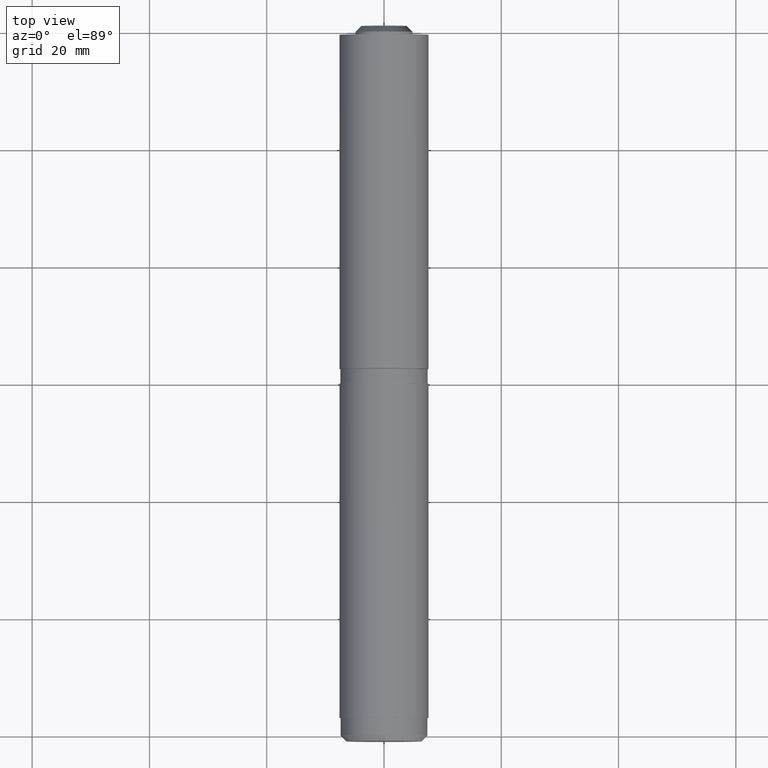
[diagram: clean part render]
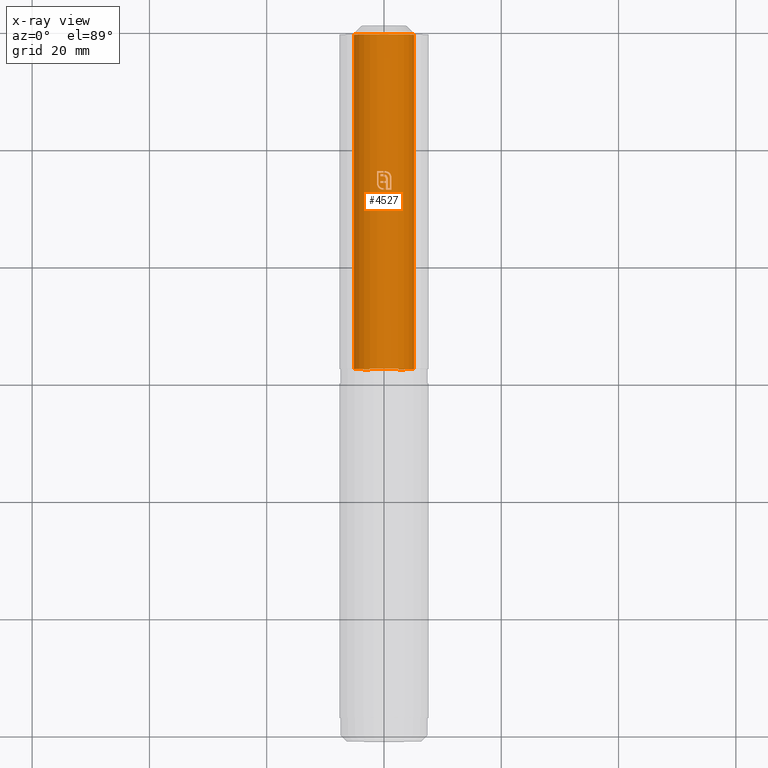
[diagram: x-ray — body ghosted, one internal face saturated and labeled with its STEP entity id]
A machine part, top view, then the same camera in x-ray: the body is ghosted and one INTERNAL B-rep face — a face not visible from any outside direction — is saturated and labeled: STEP entity #4527.
In plain terms, the highlighted cylindrical surface (edge-blend (fillet) strip) has radius 5.15 mm, axis along (-0, -1, -0).
Its self-contained STEP definition (entity closure, byte-faithful):
#54 = CARTESIAN_POINT ( 'NONE',  ( -0.9514638420062492274, 3.012266541773817696, 5.061345529765198137 ) ) ;
#95 = CARTESIAN_POINT ( 'NONE',  ( 0.2656416863490823066, 4.042744835306970153, 5.143174345169195583 ) ) ;
#100 = CARTESIAN_POINT ( 'NONE',  ( -0.9480115899238699129, 2.958224612087872796, 5.062003899162167642 ) ) ;
#117 = CARTESIAN_POINT ( 'NONE',  ( 1.235263937924517386, 4.278708222149789187, 4.999667901836229333 ) ) ;
#119 = EDGE_CURVE ( 'NONE', #3779, #10561, #13998, .T. ) ;
#126 = ORIENTED_EDGE ( 'NONE', *, *, #5623, .F. ) ;
#129 = CARTESIAN_POINT ( 'NONE',  ( 1.001326546113190608, 4.188117895584103856, 5.051727657652583581 ) ) ;
#148 = ORIENTED_EDGE ( 'NONE', *, *, #5060, .F. ) ;
#178 = CARTESIAN_POINT ( 'NONE',  ( 0.7634426423736651035, 4.656960180102788449, 5.093098794624497216 ) ) ;
#212 = CARTESIAN_POINT ( 'NONE',  ( 0.3116961057687814840, 3.907502314145853806, 5.140561942636786341 ) ) ;
#297 = LINE ( 'NONE', #10263, #10978 ) ;
#401 = VERTEX_POINT ( 'NONE', #2156 ) ;
#407 = ORIENTED_EDGE ( 'NONE', *, *, #10442, .F. ) ;
#425 = CARTESIAN_POINT ( 'NONE',  ( -1.198680113493026278, 3.020709355260479789, 5.008559474160003688 ) ) ;
#441 = B_SPLINE_CURVE_WITH_KNOTS ( 'NONE', 3,
 ( #13506, #7033, #5776, #2629, #6985, #11289 ),
 .UNSPECIFIED., .F., .F.,
 ( 4, 2, 4 ),
 ( 2.710505431213773122E-20, 0.0001521135137194211135, 0.0003042270274388423354 ),
 .UNSPECIFIED. ) ;
#472 = CARTESIAN_POINT ( 'NONE',  ( 0.000000000000000000, 4.288401663094819405, 0.000000000000000000 ) ) ;
#496 = EDGE_CURVE ( 'NONE', #6688, #3800, #5632, .T. ) ;
#504 = CARTESIAN_POINT ( 'NONE',  ( 1.006151909671600952, 28.50000000000000355, 5.050758194040196436 ) ) ;
#551 = DIRECTION ( 'NONE',  ( 1.000000000000000000, -3.073660527822983003E-14, 1.687538997430237941E-14 ) ) ;
#552 = CARTESIAN_POINT ( 'NONE',  ( 0.2572035374012060505, 4.513251683778864098, 5.143801824374816256 ) ) ;
#565 = CARTESIAN_POINT ( 'NONE',  ( 0.7249578341402796999, 4.694796364834600944, 5.098867570152659567 ) ) ;
#574 = CARTESIAN_POINT ( 'NONE',  ( 0.02696769636643774060, 4.253728910623679305, 5.149929392074485968 ) ) ;
#599 = CARTESIAN_POINT ( 'NONE',  ( 1.117958175357959938, 4.598402445668628324, 5.027258747773804437 ) ) ;
#654 = EDGE_CURVE ( 'NONE', #10561, #7943, #297, .T. ) ;
#657 = CARTESIAN_POINT ( 'NONE',  ( 0.1829950824865388959, 4.899669447400730071, 5.146747788631743425 ) ) ;
#677 = CARTESIAN_POINT ( 'NONE',  ( 0.08625168505079007508, 4.572649326776795142, 5.149386774732839456 ) ) ;
#727 = VERTEX_POINT ( 'NONE', #12993 ) ;
#732 = DIRECTION ( 'NONE',  ( 0.000000000000000000, 1.000000000000000000, 0.000000000000000000 ) ) ;
#749 = CARTESIAN_POINT ( 'NONE',  ( 0.1001657293610526134, 28.50000000000000355, 5.149025813361354231 ) ) ;
#759 = DIRECTION ( 'NONE',  ( 1.000000000000000000, 2.981029662600920935E-14, -4.796163466380676255E-14 ) ) ;
#770 = ORIENTED_EDGE ( 'NONE', *, *, #4384, .F. ) ;
#778 = CARTESIAN_POINT ( 'NONE',  ( -0.3953037637683505245, 2.286331746742284565, 5.135045849603462997 ) ) ;
#792 = CARTESIAN_POINT ( 'NONE',  ( 0.6684136170824099832, 3.703459487146627982, 5.106439389290623687 ) ) ;
#825 = AXIS2_PLACEMENT_3D ( 'NONE', #2464, #4674, #9081 ) ;
#831 = DIRECTION ( 'NONE',  ( 0.000000000000000000, 0.000000000000000000, -1.000000000000000000 ) ) ;
#870 = CARTESIAN_POINT ( 'NONE',  ( 1.042270003574393700, 4.714514003341832904, 5.043509582107034817 ) ) ;
#920 = CARTESIAN_POINT ( 'NONE',  ( -0.1290596897536638865, 2.247203883359007115, 5.148382619471933097 ) ) ;
#953 = VERTEX_POINT ( 'NONE', #10303 ) ;
#971 = B_SPLINE_CURVE_WITH_KNOTS ( 'NONE', 3,
 ( #8482, #7722, #95, #7677, #3218, #8657 ),
 .UNSPECIFIED., .F., .F.,
 ( 4, 2, 4 ),
 ( 0.000000000000000000, 0.0001002091397756544862, 0.0002004182795513090266 ),
 .UNSPECIFIED. ) ;
#1009 = EDGE_CURVE ( 'NONE', #7832, #4758, #12327, .T. ) ;
#1118 = ORIENTED_EDGE ( 'NONE', *, *, #654, .F. ) ;
#1129 = LINE ( 'NONE', #4404, #8090 ) ;
#1183 = CARTESIAN_POINT ( 'NONE',  ( -1.037898150201054026, 2.503826108212342749, 5.044387263875490746 ) ) ;
#1190 = CARTESIAN_POINT ( 'NONE',  ( -0.7101493376495152665, 2.485418534595863704, 5.100802673916718710 ) ) ;
#1198 = CARTESIAN_POINT ( 'NONE',  ( 0.3255386204234216319, 2.247203883359007115, 5.139700828512571817 ) ) ;
#1204 = VECTOR ( 'NONE', #10959, 1000.000000000000000 ) ;
#1232 = CARTESIAN_POINT ( 'NONE',  ( 0.000000000000000000, 4.609445667457183760, 0.000000000000000000 ) ) ;
#1260 = CARTESIAN_POINT ( 'NONE',  ( 0.3026828635397070810, 3.944711261904063626, 5.141111083449318997 ) ) ;
#1291 = DIRECTION ( 'NONE',  ( 0.000000000000000000, -1.000000000000000000, -0.000000000000000000 ) ) ;
#1296 = CARTESIAN_POINT ( 'NONE',  ( 0.7634426423736651035, 4.656960180102788449, 5.093098794624497216 ) ) ;
#1353 = B_SPLINE_CURVE_WITH_KNOTS ( 'NONE', 3,
 ( #9060, #12422, #2722, #10293, #9478, #677, #13692, #6109 ),
 .UNSPECIFIED., .F., .F.,
 ( 4, 2, 2, 4 ),
 ( 5.421010862427521568E-20, 0.0002066286683429138229, 0.0003099430025143708970, 0.0004132573366858279711 ),
 .UNSPECIFIED. ) ;
#1354 = DIRECTION ( 'NONE',  ( -0.000000000000000000, -1.000000000000000000, -0.000000000000000000 ) ) ;
#1462 = VERTEX_POINT ( 'NONE', #1198 ) ;
#1498 = EDGE_CURVE ( 'NONE', #12673, #7832, #12641, .T. ) ;
#1513 = VERTEX_POINT ( 'NONE', #13254 ) ;
#1559 = CARTESIAN_POINT ( 'NONE',  ( -0.1603799665549603959, 4.287855648613996706, 5.147642793893175472 ) ) ;
#1625 = B_SPLINE_CURVE_WITH_KNOTS ( 'NONE', 3,
 ( #4873, #4826, #13780, #8303, #3997, #4044, #5056, #7274, #1876, #5151, #870, #1733, #2821 ),
 .UNSPECIFIED., .F., .F.,
 ( 4, 3, 3, 3, 4 ),
 ( 0.000000000000000000, 0.0001343617776568795347, 0.0002691564364711659550, 0.0004036738706247711248, 0.0005400657969626152053 ),
 .UNSPECIFIED. ) ;
#1650 = CARTESIAN_POINT ( 'NONE',  ( 0.4385461099589683109, 4.384072776394805082, 5.131293921560121873 ) ) ;
#1653 = CARTESIAN_POINT ( 'NONE',  ( 1.209693808437329876, 4.375083544272663438, 5.005910595468958668 ) ) ;
#1675 = CARTESIAN_POINT ( 'NONE',  ( -1.061371478421924586, 2.541922279363652226, 5.039443479670393522 ) ) ;
#1685 = EDGE_CURVE ( 'NONE', #12175, #13212, #3680, .T. ) ;
#1701 = CARTESIAN_POINT ( 'NONE',  ( 0.2908658679522881374, 3.980841506915695938, 5.141779560313758601 ) ) ;
#1722 = B_SPLINE_CURVE_WITH_KNOTS ( 'NONE', 3,
 ( #2656, #565, #13390, #4766, #12357, #2890, #8327, #2939, #9454, #657 ),
 .UNSPECIFIED., .F., .F.,
 ( 4, 2, 2, 2, 4 ),
 ( 0.000000000000000000, 0.0001623717463115153213, 0.0003247434926230306426, 0.0004871152389345459639, 0.0006494869852460612852 ),
 .UNSPECIFIED. ) ;
#1733 = CARTESIAN_POINT ( 'NONE',  ( 1.067582184824192870, 4.677024525060716087, 5.038197692495725022 ) ) ;
#1816 = B_SPLINE_CURVE_WITH_KNOTS ( 'NONE', 3,
 ( #13494, #6093, #7626, #13008, #7770, #8807, #11934, #11884, #1183, #2335 ),
 .UNSPECIFIED., .F., .F.,
 ( 4, 2, 2, 2, 4 ),
 ( 0.000000000000000000, 0.0001350032744043242903, 0.0002700065488086485807, 0.0004050098232129728439, 0.0005400130976172973782 ),
 .UNSPECIFIED. ) ;
#1821 = CARTESIAN_POINT ( 'NONE',  ( -0.4282727018193729362, 2.043661984593277303, 5.132161580939976986 ) ) ;
#1835 = CARTESIAN_POINT ( 'NONE',  ( 0.1521748580677537155, 4.552941922689394794, 5.147751238411978569 ) ) ;
#1876 = CARTESIAN_POINT ( 'NONE',  ( 0.9866848504974734535, 4.784723733212166152, 5.054675521169187391 ) ) ;
#1884 = CIRCLE ( 'NONE', #9148, 5.150000000000000355 ) ;
#1909 = CARTESIAN_POINT ( 'NONE',  ( 0.000000000000000000, 2.247203883359007115, 0.000000000000000000 ) ) ;
#1910 = CARTESIAN_POINT ( 'NONE',  ( -0.6712437677446919659, 2.448117814354236366, 5.106219226264464339 ) ) ;
#1937 = LINE ( 'NONE', #3491, #4466 ) ;
#1974 = CARTESIAN_POINT ( 'NONE',  ( -0.3430776605014926872, 2.270840328520917772, 5.138834374092059676 ) ) ;
#1975 = B_SPLINE_CURVE_WITH_KNOTS ( 'NONE', 3,
 ( #12012, #7841, #117, #10956, #5484, #8880 ),
 .UNSPECIFIED., .F., .F.,
 ( 4, 2, 4 ),
 ( 0.000000000000000000, 0.0001497732147912061063, 0.0002995464295824122125 ),
 .UNSPECIFIED. ) ;
#2098 = B_SPLINE_CURVE_WITH_KNOTS ( 'NONE', 3,
 ( #9645, #7811, #8894, #5507, #4448, #5646 ),
 .UNSPECIFIED., .F., .F.,
 ( 4, 2, 4 ),
 ( 0.000000000000000000, 0.0001456418432298739571, 0.0002912836864597479142 ),
 .UNSPECIFIED. ) ;
#2111 = EDGE_CURVE ( 'NONE', #4865, #3645, #5328, .T. ) ;
#2143 = VECTOR ( 'NONE', #6042, 1000.000000000000000 ) ;
#2156 = CARTESIAN_POINT ( 'NONE',  ( 0.02696769636643774060, 4.253728910623679305, 5.149929392074485968 ) ) ;
#2280 = DIRECTION ( 'NONE',  ( -2.501565858408595493E-14, -1.000000000000000000, -0.000000000000000000 ) ) ;
#2335 = CARTESIAN_POINT ( 'NONE',  ( -1.061371478421924586, 2.541922279363652226, 5.039443479670393522 ) ) ;
#2414 = ORIENTED_EDGE ( 'NONE', *, *, #13467, .F. ) ;
#2422 = ORIENTED_EDGE ( 'NONE', *, *, #12716, .F. ) ;
#2441 = ORIENTED_EDGE ( 'NONE', *, *, #13387, .F. ) ;
#2464 = CARTESIAN_POINT ( 'NONE',  ( 0.000000000000000000, 5.146873330759755838, 0.000000000000000000 ) ) ;
#2513 = DIRECTION ( 'NONE',  ( -1.546769729245018202E-14, -1.000000000000000000, -0.000000000000000000 ) ) ;
#2529 = B_SPLINE_CURVE_WITH_KNOTS ( 'NONE', 3,
 ( #13244, #9090, #7875, #8957, #3555, #5807, #11137, #12225, #5705, #7922 ),
 .UNSPECIFIED., .F., .F.,
 ( 4, 2, 2, 2, 4 ),
 ( 8.402566836762689215E-19, 0.0001391307867479563110, 0.0002782615734959118089, 0.0004173923602438672797, 0.0005565231469918227505 ),
 .UNSPECIFIED. ) ;
#2531 = LINE ( 'NONE', #504, #4714 ) ;
#2561 = VECTOR ( 'NONE', #8897, 1000.000000000000000 ) ;
#2588 = VERTEX_POINT ( 'NONE', #1835 ) ;
#2595 = EDGE_CURVE ( 'NONE', #7469, #9361, #5386, .T. ) ;
#2629 = CARTESIAN_POINT ( 'NONE',  ( -0.3306538437293830568, 2.017984925437079191, 5.139619400601455723 ) ) ;
#2637 = ORIENTED_EDGE ( 'NONE', *, *, #12076, .F. ) ;
#2656 = CARTESIAN_POINT ( 'NONE',  ( 0.7634426423736651035, 4.656960180102788449, 5.093098794624497216 ) ) ;
#2707 = EDGE_LOOP ( 'NONE', ( #6882, #3365, #3904, #3703 ) ) ;
#2713 = CARTESIAN_POINT ( 'NONE',  ( 0.08600727544289761550, 4.228851568771043290, 5.149353066988969552 ) ) ;
#2722 = CARTESIAN_POINT ( 'NONE',  ( -0.1172350299566341514, 4.605902491787695396, 5.149118567554403114 ) ) ;
#2752 = CARTESIAN_POINT ( 'NONE',  ( 0.1868476105388872377, 4.149710653210285649, 5.146609366411628805 ) ) ;
#2762 = CARTESIAN_POINT ( 'NONE',  ( -0.9528586049474506714, 4.899669447400730071, 5.061082935398075300 ) ) ;
#2821 = CARTESIAN_POINT ( 'NONE',  ( 1.092833790849435216, 4.639623803867238827, 5.032714407313179095 ) ) ;
#2841 = CARTESIAN_POINT ( 'NONE',  ( -0.1221861262401631593, 4.286264409165408296, 5.148688074548740445 ) ) ;
#2877 = CARTESIAN_POINT ( 'NONE',  ( -0.6279620725326150454, 28.50000000000000355, 5.111571542633492449 ) ) ;
#2890 = CARTESIAN_POINT ( 'NONE',  ( 0.4503742109763937962, 4.859778031059031278, 5.130507878695465429 ) ) ;
#2939 = CARTESIAN_POINT ( 'NONE',  ( 0.2914337767591878015, 4.894863623691027676, 5.142024028237578648 ) ) ;
#3033 = EDGE_CURVE ( 'NONE', #7654, #4762, #6003, .T. ) ;
#3079 = CARTESIAN_POINT ( 'NONE',  ( 1.253355793030609400, 2.000000000000008882, 4.995157580705198441 ) ) ;
#3090 = CARTESIAN_POINT ( 'NONE',  ( -0.6279620725327538233, 28.50000000000000355, 5.111571542633475573 ) ) ;
#3148 = DIRECTION ( 'NONE',  ( 0.000000000000000000, 0.000000000000000000, -1.000000000000000000 ) ) ;
#3218 = CARTESIAN_POINT ( 'NONE',  ( 0.2098496022742436240, 4.125546855542343572, 5.145774279291661202 ) ) ;
#3224 = CARTESIAN_POINT ( 'NONE',  ( -0.8710476010178065387, 2.701048633783866837, 5.075847080969653646 ) ) ;
#3266 = CARTESIAN_POINT ( 'NONE',  ( -0.5411381078292445412, 2.352256361621046565, 5.121689376404289007 ) ) ;
#3317 = CARTESIAN_POINT ( 'NONE',  ( -0.9528586049474506714, 3.066508182491718859, 5.061082935398074412 ) ) ;
#3350 = CARTESIAN_POINT ( 'NONE',  ( 1.004768543541196824, 4.134340851294193264, 5.051033771769401604 ) ) ;
#3365 = ORIENTED_EDGE ( 'NONE', *, *, #1009, .F. ) ;
#3397 = CARTESIAN_POINT ( 'NONE',  ( 0.000000000000000000, 2.000000000000022649, 0.000000000000000000 ) ) ;
#3442 = CARTESIAN_POINT ( 'NONE',  ( 0.8975537433497914330, 4.491006260133464600, 5.071276719112333353 ) ) ;
#3453 = CARTESIAN_POINT ( 'NONE',  ( -1.177725113110664745, 2.839545885590136098, 5.013542226593695084 ) ) ;
#3483 = EDGE_CURVE ( 'NONE', #8206, #4930, #2531, .T. ) ;
#3491 = CARTESIAN_POINT ( 'NONE',  ( 0.3216860923710732623, 28.50000000000000355, 5.139943390541866997 ) ) ;
#3492 = CARTESIAN_POINT ( 'NONE',  ( 0.8010066555422021839, 4.618643383469577479, 5.087468043950308605 ) ) ;
#3499 = CYLINDRICAL_SURFACE ( 'NONE', #8853, 5.150000000000000355 ) ;
#3506 = CARTESIAN_POINT ( 'NONE',  ( -1.104813802151353164, 2.622480818744278963, 5.030131507289481441 ) ) ;
#3521 = B_SPLINE_CURVE_WITH_KNOTS ( 'NONE', 3,
 ( #12661, #11685, #10502, #11584, #13746, #792 ),
 .UNSPECIFIED., .F., .F.,
 ( 4, 2, 4 ),
 ( 0.000000000000000000, 0.0002023354686578664955, 0.0004046709373157317442 ),
 .UNSPECIFIED. ) ;
#3555 = CARTESIAN_POINT ( 'NONE',  ( 0.4130733951640685464, 5.124534335375709126, 5.133603890859590457 ) ) ;
#3568 = AXIS2_PLACEMENT_3D ( 'NONE', #4953, #13498, #13683 ) ;
#3645 = VERTEX_POINT ( 'NONE', #6442 ) ;
#3675 = EDGE_CURVE ( 'NONE', #10188, #6759, #6230, .T. ) ;
#3680 = CIRCLE ( 'NONE', #11859, 5.150000000000000355 ) ;
#3685 = VERTEX_POINT ( 'NONE', #13931 ) ;
#3703 = ORIENTED_EDGE ( 'NONE', *, *, #6015, .T. ) ;
#3779 = VERTEX_POINT ( 'NONE', #8300 ) ;
#3800 = VERTEX_POINT ( 'NONE', #920 ) ;
#3854 = DIRECTION ( 'NONE',  ( -6.234671831726042317E-14, -1.000000000000000000, -0.000000000000000000 ) ) ;
#3904 = ORIENTED_EDGE ( 'NONE', *, *, #1498, .F. ) ;
#3932 = ORIENTED_EDGE ( 'NONE', *, *, #3675, .F. ) ;
#3955 = CIRCLE ( 'NONE', #8629, 5.150000000000000355 ) ;
#3997 = CARTESIAN_POINT ( 'NONE',  ( 0.8584027756487896399, 4.908154601255521499, 5.078086849975880668 ) ) ;
#4044 = CARTESIAN_POINT ( 'NONE',  ( 0.8924474821892379728, 4.879208963012157341, 5.072188820566683631 ) ) ;
#4081 = AXIS2_PLACEMENT_3D ( 'NONE', #10400, #9155, #551 ) ;
#4151 = VERTEX_POINT ( 'NONE', #1821 ) ;
#4201 = EDGE_CURVE ( 'NONE', #11080, #953, #971, .T. ) ;
#4297 = VERTEX_POINT ( 'NONE', #7870 ) ;
#4323 = VERTEX_POINT ( 'NONE', #5602 ) ;
#4384 = EDGE_CURVE ( 'NONE', #11001, #9135, #1129, .T. ) ;
#4404 = CARTESIAN_POINT ( 'NONE',  ( 1.253355793030608956, 28.50000000000000355, 4.995157580705198441 ) ) ;
#4448 = CARTESIAN_POINT ( 'NONE',  ( -0.6515249196208967586, 2.135356974075730996, 5.108791579316694254 ) ) ;
#4466 = VECTOR ( 'NONE', #8938, 1000.000000000000000 ) ;
#4527 = ADVANCED_FACE ( 'NONE', ( #5334, #8240 ), #3499, .F. ) ;
#4557 = VERTEX_POINT ( 'NONE', #12608 ) ;
#4599 = CARTESIAN_POINT ( 'NONE',  ( 0.000000000000000000, 28.50000000000000355, 0.000000000000000000 ) ) ;
#4648 = EDGE_CURVE ( 'NONE', #6759, #8206, #12808, .T. ) ;
#4652 = VECTOR ( 'NONE', #7373, 1000.000000000000000 ) ;
#4674 = DIRECTION ( 'NONE',  ( -2.132914047695753628E-14, 1.000000000000000000, -0.000000000000000000 ) ) ;
#4714 = VECTOR ( 'NONE', #7091, 1000.000000000000000 ) ;
#4718 = CARTESIAN_POINT ( 'NONE',  ( -0.6279620725327539343, 4.609445667457169549, 5.111571542633475573 ) ) ;
#4719 = CARTESIAN_POINT ( 'NONE',  ( -1.140620219605273711, 2.706993267645992240, 5.022133215345655266 ) ) ;
#4758 = VERTEX_POINT ( 'NONE', #4870 ) ;
#4761 = CARTESIAN_POINT ( 'NONE',  ( -0.02806866217691238868, 4.270059114442719128, 5.149923509160462487 ) ) ;
#4762 = VERTEX_POINT ( 'NONE', #2762 ) ;
#4766 = CARTESIAN_POINT ( 'NONE',  ( 0.5954249620967099199, 4.791724739770278241, 5.115661908726905516 ) ) ;
#4826 = CARTESIAN_POINT ( 'NONE',  ( 0.7490611693975453012, 4.984464953449307068, 5.095375427735576501 ) ) ;
#4865 = VERTEX_POINT ( 'NONE', #8480 ) ;
#4866 = DIRECTION ( 'NONE',  ( -0.000000000000000000, 1.000000000000000000, 0.000000000000000000 ) ) ;
#4870 = CARTESIAN_POINT ( 'NONE',  ( -2.428238341968911307, -28.50000000000000355, -4.541603082017633852 ) ) ;
#4873 = CARTESIAN_POINT ( 'NONE',  ( 0.7114335136669649451, 5.008182320875207871, 5.100623722215888556 ) ) ;
#4918 = AXIS2_PLACEMENT_3D ( 'NONE', #11905, #11768, #3148 ) ;
#4930 = VERTEX_POINT ( 'NONE', #10853 ) ;
#4934 = CARTESIAN_POINT ( 'NONE',  ( -0.08453036527617406592, 4.280784730494653800, 5.149306226798547215 ) ) ;
#4951 = CARTESIAN_POINT ( 'NONE',  ( -0.1984051946959312640, 4.288401663094819405, 5.146176772975999292 ) ) ;
#4953 = CARTESIAN_POINT ( 'NONE',  ( 0.000000000000000000, -28.50000000000000355, 0.000000000000000000 ) ) ;
#4968 = CARTESIAN_POINT ( 'NONE',  ( 0.3974860670736456991, 4.421963566769599119, 5.134803118725080218 ) ) ;
#5016 = CARTESIAN_POINT ( 'NONE',  ( 0.4385461099589683109, 4.384072776394805082, 5.131293921560121873 ) ) ;
#5017 = VERTEX_POINT ( 'NONE', #13932 ) ;
#5056 = CARTESIAN_POINT ( 'NONE',  ( 0.9245055235484402889, 4.848354000489142557, 5.066338869137007705 ) ) ;
#5060 = EDGE_CURVE ( 'NONE', #5595, #11001, #1975, .T. ) ;
#5067 = CARTESIAN_POINT ( 'NONE',  ( 0.6119098723146367824, 4.102196140564652538, 5.113517997246502134 ) ) ;
#5091 = ORIENTED_EDGE ( 'NONE', *, *, #10731, .F. ) ;
#5151 = CARTESIAN_POINT ( 'NONE',  ( 1.014269512363458858, 4.749881485759950728, 5.049134317513249925 ) ) ;
#5233 = B_SPLINE_CURVE_WITH_KNOTS ( 'NONE', 3,
 ( #8044, #13527, #11362, #4761, #8137, #9123, #4934, #2841, #1559, #12527 ),
 .UNSPECIFIED., .F., .F.,
 ( 4, 3, 3, 4 ),
 ( 0.000000000000000000, 5.740798161485931696E-05, 0.0001149019613531575653, 0.0002293564749497208055 ),
 .UNSPECIFIED. ) ;
#5246 = CARTESIAN_POINT ( 'NONE',  ( 0.3216860923710733178, 2.247203883359007115, 5.139943390541866997 ) ) ;
#5280 = EDGE_CURVE ( 'NONE', #9361, #10188, #3521, .T. ) ;
#5291 = CARTESIAN_POINT ( 'NONE',  ( -0.2370199900108367896, 2.251623738793739449, 5.144817055039037967 ) ) ;
#5328 = LINE ( 'NONE', #749, #2143 ) ;
#5334 = FACE_OUTER_BOUND ( 'NONE', #2707, .T. ) ;
#5385 = CARTESIAN_POINT ( 'NONE',  ( -0.1290596897536638865, 2.247203883359007115, 5.148382619471933097 ) ) ;
#5386 = B_SPLINE_CURVE_WITH_KNOTS ( 'NONE', 3,
 ( #5016, #12703, #6305, #8355, #9391, #5067 ),
 .UNSPECIFIED., .F., .F.,
 ( 4, 2, 4 ),
 ( 0.000000000000000000, 0.0001675555261913829505, 0.0003351110523827659010 ),
 .UNSPECIFIED. ) ;
#5392 = ORIENTED_EDGE ( 'NONE', *, *, #3483, .F. ) ;
#5401 = CIRCLE ( 'NONE', #5694, 5.150000000000000355 ) ;
#5484 = CARTESIAN_POINT ( 'NONE',  ( 1.252504805234960106, 4.130234217690910370, 4.995371105597307348 ) ) ;
#5507 = CARTESIAN_POINT ( 'NONE',  ( -0.6093747338364868815, 2.111442061596172426, 5.114015131523524715 ) ) ;
#5595 = VERTEX_POINT ( 'NONE', #13702 ) ;
#5601 = DIRECTION ( 'NONE',  ( 1.000000000000000000, 3.688392633387580108E-14, 1.421085471520200372E-14 ) ) ;
#5602 = CARTESIAN_POINT ( 'NONE',  ( -1.200062488306459008, 5.146873330759742515, 5.008228232035727423 ) ) ;
#5623 = EDGE_CURVE ( 'NONE', #12200, #5595, #6974, .T. ) ;
#5632 = B_SPLINE_CURVE_WITH_KNOTS ( 'NONE', 3,
 ( #7638, #1910, #8658, #3266, #10110, #778, #1974, #5291, #10623, #5385 ),
 .UNSPECIFIED., .F., .F.,
 ( 4, 2, 2, 2, 4 ),
 ( 0.000000000000000000, 0.0001620854558625806118, 0.0003241709117251612236, 0.0004862563675877418353, 0.0006483418234503224471 ),
 .UNSPECIFIED. ) ;
#5633 = LINE ( 'NONE', #3090, #11763 ) ;
#5646 = CARTESIAN_POINT ( 'NONE',  ( -0.6928129614139485470, 2.160522002181176848, 5.103186279227599265 ) ) ;
#5694 = AXIS2_PLACEMENT_3D ( 'NONE', #472, #8089, #10264 ) ;
#5697 = CARTESIAN_POINT ( 'NONE',  ( -1.200062488306459008, 3.066508182491718859, 5.008228232035727423 ) ) ;
#5701 = ORIENTED_EDGE ( 'NONE', *, *, #1685, .F. ) ;
#5705 = CARTESIAN_POINT ( 'NONE',  ( 0.6709943496949400954, 5.029838436227974441, 5.106264165048221670 ) ) ;
#5761 = CARTESIAN_POINT ( 'NONE',  ( 0.3255386204234216319, 3.144200831547407038, 5.139700828512574482 ) ) ;
#5776 = CARTESIAN_POINT ( 'NONE',  ( -0.2304127088295526704, 2.003455262474646670, 5.145087903138459318 ) ) ;
#5801 = ORIENTED_EDGE ( 'NONE', *, *, #11379, .F. ) ;
#5805 = CARTESIAN_POINT ( 'NONE',  ( 0.6684136170824099832, 3.703459487146627982, 5.106439389290623687 ) ) ;
#5807 = CARTESIAN_POINT ( 'NONE',  ( 0.5025739177068472285, 5.101203896403180060, 5.125615864974851554 ) ) ;
#5862 = CARTESIAN_POINT ( 'NONE',  ( 0.3255386204234216319, 3.755468615853331471, 5.139700828512570929 ) ) ;
#5923 = CARTESIAN_POINT ( 'NONE',  ( 0.7114335136669649451, 5.008182320875207871, 5.100623722215888556 ) ) ;
#5926 = AXIS2_PLACEMENT_3D ( 'NONE', #6732, #1291, #6779 ) ;
#6003 = CIRCLE ( 'NONE', #5926, 5.150000000000000355 ) ;
#6015 = EDGE_CURVE ( 'NONE', #12673, #4557, #11111, .T. ) ;
#6042 = DIRECTION ( 'NONE',  ( -0.000000000000000000, -1.000000000000000000, -0.000000000000000000 ) ) ;
#6093 = CARTESIAN_POINT ( 'NONE',  ( -0.7302566568121378054, 2.184994589824037270, 5.098102890913773777 ) ) ;
#6109 = CARTESIAN_POINT ( 'NONE',  ( 0.1521748580677537155, 4.552941922689394794, 5.147751238411978569 ) ) ;
#6112 = EDGE_CURVE ( 'NONE', #7260, #8344, #2529, .T. ) ;
#6121 = CIRCLE ( 'NONE', #9007, 5.150000000000000355 ) ;
#6148 = ORIENTED_EDGE ( 'NONE', *, *, #10139, .F. ) ;
#6183 = ORIENTED_EDGE ( 'NONE', *, *, #13143, .F. ) ;
#6230 = LINE ( 'NONE', #7510, #8967 ) ;
#6296 = CIRCLE ( 'NONE', #12616, 5.150000000000000355 ) ;
#6305 = CARTESIAN_POINT ( 'NONE',  ( 0.5132662956591883541, 4.301105279496968414, 5.124441711197039062 ) ) ;
#6428 = ORIENTED_EDGE ( 'NONE', *, *, #4648, .F. ) ;
#6442 = CARTESIAN_POINT ( 'NONE',  ( 0.1001657293610526134, 2.000000000000008882, 5.149025813361354231 ) ) ;
#6548 = CARTESIAN_POINT ( 'NONE',  ( 0.2908658679522881374, 3.980841506915695938, 5.141779560313758601 ) ) ;
#6584 = CARTESIAN_POINT ( 'NONE',  ( -0.7833255206696866368, 2.564618992791558583, 5.090171765307107243 ) ) ;
#6597 = CARTESIAN_POINT ( 'NONE',  ( -2.428238341968911307, 28.50000000000000355, -4.541603082017633852 ) ) ;
#6665 = CARTESIAN_POINT ( 'NONE',  ( 0.6119098723146367824, 4.102196140564652538, 5.113517997246502134 ) ) ;
#6666 = CARTESIAN_POINT ( 'NONE',  ( 0.8367806870905085681, 4.578952919471806382, 5.081658033134886843 ) ) ;
#6688 = VERTEX_POINT ( 'NONE', #10915 ) ;
#6704 = CARTESIAN_POINT ( 'NONE',  ( 0.3251442242230470070, 3.793746295550314951, 5.139725952534251796 ) ) ;
#6732 = CARTESIAN_POINT ( 'NONE',  ( 0.000000000000000000, 4.899669447400730071, 0.000000000000000000 ) ) ;
#6759 = VERTEX_POINT ( 'NONE', #13422 ) ;
#6773 = CARTESIAN_POINT ( 'NONE',  ( -1.200062488306459008, 28.50000000000000355, 5.008228232035727423 ) ) ;
#6779 = DIRECTION ( 'NONE',  ( 0.000000000000000000, 0.000000000000000000, 1.000000000000000000 ) ) ;
#6882 = ORIENTED_EDGE ( 'NONE', *, *, #8104, .T. ) ;
#6917 = CARTESIAN_POINT ( 'NONE',  ( -1.186860733318274352, 2.884324913055728246, 5.011376093037777757 ) ) ;
#6918 = ORIENTED_EDGE ( 'NONE', *, *, #8638, .F. ) ;
#6927 = EDGE_CURVE ( 'NONE', #13212, #2588, #1353, .T. ) ;
#6929 = EDGE_CURVE ( 'NONE', #8344, #12200, #1625, .T. ) ;
#6937 = VERTEX_POINT ( 'NONE', #1296 ) ;
#6972 = DIRECTION ( 'NONE',  ( 0.000000000000000000, 0.000000000000000000, -1.000000000000000000 ) ) ;
#6974 = B_SPLINE_CURVE_WITH_KNOTS ( 'NONE', 3,
 ( #8317, #599, #9394, #7289, #8132, #1653 ),
 .UNSPECIFIED., .F., .F.,
 ( 4, 2, 4 ),
 ( 0.000000000000000000, 0.0001455357383244819240, 0.0002910714766489638479 ),
 .UNSPECIFIED. ) ;
#6985 = CARTESIAN_POINT ( 'NONE',  ( -0.3797011196735686767, 2.029856882915932914, 5.136214820961586547 ) ) ;
#7033 = CARTESIAN_POINT ( 'NONE',  ( -0.1797495514069334666, 2.000834499397831756, 5.147111925682802180 ) ) ;
#7091 = DIRECTION ( 'NONE',  ( 0.000000000000000000, 1.000000000000000000, 0.000000000000000000 ) ) ;
#7150 = CARTESIAN_POINT ( 'NONE',  ( -0.6279620725327539343, 4.288401663094819405, 5.111571542633475573 ) ) ;
#7160 = B_SPLINE_CURVE_WITH_KNOTS ( 'NONE', 3,
 ( #2752, #9182, #10187, #2713, #8242, #574 ),
 .UNSPECIFIED., .F., .F.,
 ( 4, 2, 4 ),
 ( 0.000000000000000000, 9.648523723916331389E-05, 0.0001929704744783266278 ),
 .UNSPECIFIED. ) ;
#7260 = VERTEX_POINT ( 'NONE', #7473 ) ;
#7274 = CARTESIAN_POINT ( 'NONE',  ( 0.9564968957645683112, 4.817563205139909321, 5.060501083492649599 ) ) ;
#7289 = CARTESIAN_POINT ( 'NONE',  ( 1.180891097638812948, 4.467817906789174565, 5.012823474627476017 ) ) ;
#7297 = CARTESIAN_POINT ( 'NONE',  ( 0.4385461099589683109, 4.384072776394805082, 5.131293921560121873 ) ) ;
#7321 = ORIENTED_EDGE ( 'NONE', *, *, #9398, .F. ) ;
#7371 = DIRECTION ( 'NONE',  ( -0.000000000000000000, -1.000000000000000000, -0.000000000000000000 ) ) ;
#7373 = DIRECTION ( 'NONE',  ( -0.000000000000000000, -1.000000000000000000, -0.000000000000000000 ) ) ;
#7382 = CIRCLE ( 'NONE', #3568, 5.150000000000000355 ) ;
#7469 = VERTEX_POINT ( 'NONE', #7297 ) ;
#7473 = CARTESIAN_POINT ( 'NONE',  ( 0.1829950824865388959, 5.146873330759755838, 5.146747788631744314 ) ) ;
#7510 = CARTESIAN_POINT ( 'NONE',  ( 0.6684136170824099832, 28.50000000000000355, 5.106439389290623687 ) ) ;
#7518 = CARTESIAN_POINT ( 'NONE',  ( 0.1829950824865388959, 4.899669447400730071, 5.146747788631743425 ) ) ;
#7626 = CARTESIAN_POINT ( 'NONE',  ( -0.7676634642709881939, 2.209435142315665956, 5.092589137656681864 ) ) ;
#7630 = CARTESIAN_POINT ( 'NONE',  ( -0.9127173008957951694, 2.799774195224543849, 5.068519965559228346 ) ) ;
#7638 = CARTESIAN_POINT ( 'NONE',  ( -0.7101493376495152665, 2.485418534595863704, 5.100802673916718710 ) ) ;
#7654 = VERTEX_POINT ( 'NONE', #7518 ) ;
#7677 = CARTESIAN_POINT ( 'NONE',  ( 0.2305911070550661635, 4.099619353650846953, 5.144864973124181340 ) ) ;
#7719 = ORIENTED_EDGE ( 'NONE', *, *, #9013, .F. ) ;
#7722 = CARTESIAN_POINT ( 'NONE',  ( 0.2794207542972542702, 4.012230723637062901, 5.142427000150111560 ) ) ;
#7770 = CARTESIAN_POINT ( 'NONE',  ( -0.8707934579486691362, 2.294925625338388731, 5.075944104550732305 ) ) ;
#7811 = CARTESIAN_POINT ( 'NONE',  ( -0.4747560731157240976, 2.057360898231536783, 5.128282599598334102 ) ) ;
#7832 = VERTEX_POINT ( 'NONE', #6597 ) ;
#7841 = CARTESIAN_POINT ( 'NONE',  ( 1.223431124440374829, 4.327192763109787954, 5.002590930485633081 ) ) ;
#7856 = VERTEX_POINT ( 'NONE', #5246 ) ;
#7868 = CARTESIAN_POINT ( 'NONE',  ( -1.197292602778884829, 2.974911266533472709, 5.008894006614067251 ) ) ;
#7870 = CARTESIAN_POINT ( 'NONE',  ( -0.6279620725327538233, 3.144200831547407038, 5.111571542633475573 ) ) ;
#7875 = CARTESIAN_POINT ( 'NONE',  ( 0.2756652619683286343, 5.144122214301674489, 5.142824022138485773 ) ) ;
#7922 = CARTESIAN_POINT ( 'NONE',  ( 0.7114335136669649451, 5.008182320875207871, 5.100623722215888556 ) ) ;
#7943 = VERTEX_POINT ( 'NONE', #5862 ) ;
#7961 = CARTESIAN_POINT ( 'NONE',  ( -1.083088619670853570, 2.582211951016680551, 5.034869570982370313 ) ) ;
#8044 = CARTESIAN_POINT ( 'NONE',  ( 0.02696769636643774060, 4.253728910623679305, 5.149929392074485968 ) ) ;
#8080 = CARTESIAN_POINT ( 'NONE',  ( 0.3540041567867286409, 4.456693199545896711, 5.138047481784408177 ) ) ;
#8089 = DIRECTION ( 'NONE',  ( 0.000000000000000000, -1.000000000000000000, -0.000000000000000000 ) ) ;
#8090 = VECTOR ( 'NONE', #8755, 1000.000000000000000 ) ;
#8104 = EDGE_CURVE ( 'NONE', #4557, #4758, #7382, .T. ) ;
#8109 = ORIENTED_EDGE ( 'NONE', *, *, #119, .F. ) ;
#8129 = EDGE_CURVE ( 'NONE', #10205, #12175, #5633, .T. ) ;
#8132 = CARTESIAN_POINT ( 'NONE',  ( 1.195973918179656925, 4.421638093767117361, 5.009226049466914077 ) ) ;
#8134 = ORIENTED_EDGE ( 'NONE', *, *, #11761, .F. ) ;
#8137 = CARTESIAN_POINT ( 'NONE',  ( -0.04667116098128126084, 4.274638956992486527, 5.149822119838144197 ) ) ;
#8147 = ORIENTED_EDGE ( 'NONE', *, *, #13652, .F. ) ;
#8153 = B_SPLINE_CURVE_WITH_KNOTS ( 'NONE', 3,
 ( #13339, #7961, #3506, #4719, #13386, #3453, #6917, #7868, #425, #5697 ),
 .UNSPECIFIED., .F., .F.,
 ( 4, 2, 2, 2, 4 ),
 ( 0.000000000000000000, 0.0001379272513557723329, 0.0002758545027115446658, 0.0004137817540673169986, 0.0005517090054230893315 ),
 .UNSPECIFIED. ) ;
#8206 = VERTEX_POINT ( 'NONE', #10521 ) ;
#8218 = DIRECTION ( 'NONE',  ( -0.000000000000000000, -1.000000000000000000, -0.000000000000000000 ) ) ;
#8240 = FACE_BOUND ( 'NONE', #12179, .T. ) ;
#8242 = CARTESIAN_POINT ( 'NONE',  ( 0.05684035270095638692, 4.242010628701818220, 5.149772963381128221 ) ) ;
#8300 = CARTESIAN_POINT ( 'NONE',  ( -0.6279620725327538233, 3.460750219848686360, 5.111571542633492449 ) ) ;
#8303 = CARTESIAN_POINT ( 'NONE',  ( 0.8225185826785151866, 4.934471658847437325, 5.083892522580361728 ) ) ;
#8317 = CARTESIAN_POINT ( 'NONE',  ( 1.092833790849435216, 4.639623803867238827, 5.032714407313179095 ) ) ;
#8327 = CARTESIAN_POINT ( 'NONE',  ( 0.3978670924044737101, 4.874693400636524565, 5.134885249934058038 ) ) ;
#8344 = VERTEX_POINT ( 'NONE', #5923 ) ;
#8355 = CARTESIAN_POINT ( 'NONE',  ( 0.5710858362584041448, 4.205608797122195597, 5.118320633698201227 ) ) ;
#8390 = CARTESIAN_POINT ( 'NONE',  ( 2.428238341968911307, 28.50000000000000355, -4.541603082017633852 ) ) ;
#8425 = VECTOR ( 'NONE', #8218, 1000.000000000000000 ) ;
#8480 = CARTESIAN_POINT ( 'NONE',  ( 0.1001657293610526134, 2.247203883359007115, 5.149025813361355119 ) ) ;
#8482 = CARTESIAN_POINT ( 'NONE',  ( 0.2908658679522881374, 3.980841506915695938, 5.141779560313758601 ) ) ;
#8504 = AXIS2_PLACEMENT_3D ( 'NONE', #4599, #1354, #8917 ) ;
#8530 = B_SPLINE_CURVE_WITH_KNOTS ( 'NONE', 3,
 ( #3317, #54, #100, #13017, #7630, #3224, #13107, #6584, #12087, #1190 ),
 .UNSPECIFIED., .F., .F.,
 ( 4, 2, 2, 2, 4 ),
 ( 0.000000000000000000, 0.0001623946993145049082, 0.0003247893986290098164, 0.0004871840979435147247, 0.0006495787972580196329 ),
 .UNSPECIFIED. ) ;
#8629 = AXIS2_PLACEMENT_3D ( 'NONE', #1909, #13769, #759 ) ;
#8638 = EDGE_CURVE ( 'NONE', #9301, #4151, #441, .T. ) ;
#8657 = CARTESIAN_POINT ( 'NONE',  ( 0.1868476105388872377, 4.149710653210285649, 5.146609366411628805 ) ) ;
#8658 = CARTESIAN_POINT ( 'NONE',  ( -0.6307195962050030635, 2.412739321104913071, 5.111430847725575433 ) ) ;
#8693 = CARTESIAN_POINT ( 'NONE',  ( 1.006151909671600952, 4.080365148268018771, 5.050758194040196436 ) ) ;
#8726 = CARTESIAN_POINT ( 'NONE',  ( 0.3225917190335182982, 3.831938682129114593, 5.139886790551707385 ) ) ;
#8755 = DIRECTION ( 'NONE',  ( -0.000000000000000000, -1.000000000000000000, -0.000000000000000000 ) ) ;
#8794 = CARTESIAN_POINT ( 'NONE',  ( 0.9656172315997938460, 4.345496108621293097, 5.058708542212507986 ) ) ;
#8807 = CARTESIAN_POINT ( 'NONE',  ( -0.9327434846194070373, 2.359394399891850291, 5.064926395400981107 ) ) ;
#8853 = AXIS2_PLACEMENT_3D ( 'NONE', #13788, #7371, #831 ) ;
#8868 = DIRECTION ( 'NONE',  ( -1.000000000000000000, 6.231530933120568574E-14, 4.707345624410664362E-14 ) ) ;
#8880 = CARTESIAN_POINT ( 'NONE',  ( 1.253355793030609622, 4.080365148268018771, 4.995157580705197553 ) ) ;
#8881 = CARTESIAN_POINT ( 'NONE',  ( 0.3201257218631730628, 3.850961849380382329, 5.140041587833804826 ) ) ;
#8883 = CARTESIAN_POINT ( 'NONE',  ( -0.9528586049474506714, 28.50000000000000355, 5.061082935398074412 ) ) ;
#8894 = CARTESIAN_POINT ( 'NONE',  ( -0.5207317284308132788, 2.072358756036359217, 5.123800035002863851 ) ) ;
#8897 = DIRECTION ( 'NONE',  ( 0.000000000000000000, 1.000000000000000000, 0.000000000000000000 ) ) ;
#8917 = DIRECTION ( 'NONE',  ( 0.000000000000000000, 0.000000000000000000, 1.000000000000000000 ) ) ;
#8938 = DIRECTION ( 'NONE',  ( 0.000000000000000000, 1.000000000000000000, 0.000000000000000000 ) ) ;
#8941 = EDGE_CURVE ( 'NONE', #727, #10428, #1816, .T. ) ;
#8957 = CARTESIAN_POINT ( 'NONE',  ( 0.3677944215729524458, 5.133661653451878415, 5.137057282413787895 ) ) ;
#8967 = VECTOR ( 'NONE', #10763, 1000.000000000000000 ) ;
#9007 = AXIS2_PLACEMENT_3D ( 'NONE', #10278, #4866, #6972 ) ;
#9013 = EDGE_CURVE ( 'NONE', #10428, #3685, #8153, .T. ) ;
#9060 = CARTESIAN_POINT ( 'NONE',  ( -0.2549089394637046313, 4.609445667457169549, 5.143687532556919351 ) ) ;
#9081 = DIRECTION ( 'NONE',  ( 1.000000000000000000, 2.138930887854897780E-14, -3.552713678800500929E-15 ) ) ;
#9090 = CARTESIAN_POINT ( 'NONE',  ( 0.2293439539355979218, 5.145493656110261327, 5.145099832310139121 ) ) ;
#9106 = AXIS2_PLACEMENT_3D ( 'NONE', #10330, #3854, #8868 ) ;
#9123 = CARTESIAN_POINT ( 'NONE',  ( -0.06557430845273420905, 4.278026238896081246, 5.149617407050198103 ) ) ;
#9135 = VERTEX_POINT ( 'NONE', #3079 ) ;
#9148 = AXIS2_PLACEMENT_3D ( 'NONE', #10127, #2513, #11083 ) ;
#9155 = DIRECTION ( 'NONE',  ( 3.070103553501481957E-14, 1.000000000000000000, 0.000000000000000000 ) ) ;
#9173 = ORIENTED_EDGE ( 'NONE', *, *, #12109, .F. ) ;
#9182 = CARTESIAN_POINT ( 'NONE',  ( 0.1643333399309685749, 4.172684453559362794, 5.147426746820091381 ) ) ;
#9204 = CARTESIAN_POINT ( 'NONE',  ( -2.428238341968911307, 28.50000000000000355, -4.541603082017633852 ) ) ;
#9213 = ORIENTED_EDGE ( 'NONE', *, *, #10431, .F. ) ;
#9301 = VERTEX_POINT ( 'NONE', #13181 ) ;
#9361 = VERTEX_POINT ( 'NONE', #6665 ) ;
#9391 = CARTESIAN_POINT ( 'NONE',  ( 0.5927173542012964536, 4.154468113900742665, 5.115814672708375532 ) ) ;
#9394 = CARTESIAN_POINT ( 'NONE',  ( 1.141776869663633676, 4.556460707755843664, 5.021876994925303705 ) ) ;
#9398 = EDGE_CURVE ( 'NONE', #1513, #7856, #1937, .T. ) ;
#9454 = CARTESIAN_POINT ( 'NONE',  ( 0.2373694838032216481, 4.898342882638194951, 5.144814480752140540 ) ) ;
#9478 = CARTESIAN_POINT ( 'NONE',  ( 0.01921762907504649329, 4.587328594983827834, 5.150073221974644788 ) ) ;
#9499 = ORIENTED_EDGE ( 'NONE', *, *, #12219, .F. ) ;
#9533 = ORIENTED_EDGE ( 'NONE', *, *, #11832, .F. ) ;
#9645 = CARTESIAN_POINT ( 'NONE',  ( -0.4282727018193729362, 2.043661984593277303, 5.132161580939976986 ) ) ;
#9647 = DIRECTION ( 'NONE',  ( 0.000000000000000000, 1.000000000000000000, 0.000000000000000000 ) ) ;
#9648 = EDGE_CURVE ( 'NONE', #3800, #4865, #3955, .T. ) ;
#9815 = CARTESIAN_POINT ( 'NONE',  ( 0.3253410152589704674, 3.774597257356277158, 5.139713344438063380 ) ) ;
#9831 = VERTEX_POINT ( 'NONE', #4951 ) ;
#9977 = CARTESIAN_POINT ( 'NONE',  ( 0.9810081745736276559, 4.294370355315851207, 5.055712624394577581 ) ) ;
#9990 = ORIENTED_EDGE ( 'NONE', *, *, #5280, .F. ) ;
#10002 = LINE ( 'NONE', #6773, #2561 ) ;
#10110 = CARTESIAN_POINT ( 'NONE',  ( -0.4941489280449862798, 2.326780883082393281, 5.126478106857686790 ) ) ;
#10127 = CARTESIAN_POINT ( 'NONE',  ( 0.000000000000000000, 3.144200831547407038, 0.000000000000000000 ) ) ;
#10139 = EDGE_CURVE ( 'NONE', #6937, #7654, #1722, .T. ) ;
#10176 = CARTESIAN_POINT ( 'NONE',  ( 1.092833790849435216, 4.639623803867238827, 5.032714407313179095 ) ) ;
#10187 = CARTESIAN_POINT ( 'NONE',  ( 0.1401886678610543002, 4.194102205478564827, 5.148162914801859280 ) ) ;
#10188 = VERTEX_POINT ( 'NONE', #5805 ) ;
#10205 = VERTEX_POINT ( 'NONE', #7150 ) ;
#10231 = ORIENTED_EDGE ( 'NONE', *, *, #10655, .F. ) ;
#10263 = CARTESIAN_POINT ( 'NONE',  ( 0.3255386204234216874, 28.50000000000000355, 5.139700828512570929 ) ) ;
#10264 = DIRECTION ( 'NONE',  ( 0.000000000000000000, 0.000000000000000000, 1.000000000000000000 ) ) ;
#10278 = CARTESIAN_POINT ( 'NONE',  ( 0.000000000000000000, 2.247203883359007115, 0.000000000000000000 ) ) ;
#10293 = CARTESIAN_POINT ( 'NONE',  ( -0.01477664311879583331, 4.592506714660298250, 5.150092054474739278 ) ) ;
#10303 = CARTESIAN_POINT ( 'NONE',  ( 0.1868476105388872377, 4.149710653210285649, 5.146609366411628805 ) ) ;
#10330 = CARTESIAN_POINT ( 'NONE',  ( 0.000000000000000000, 2.000000000000008882, 0.000000000000000000 ) ) ;
#10333 = B_SPLINE_CURVE_WITH_KNOTS ( 'NONE', 3,
 ( #8693, #3350, #129, #9977, #8794, #13092, #3442, #6666, #3492, #178 ),
 .UNSPECIFIED., .F., .F.,
 ( 4, 2, 2, 2, 4 ),
 ( 0.000000000000000000, 0.0001616024604658971848, 0.0003232049209317943697, 0.0004848073813976915545, 0.0006464098418635887393 ),
 .UNSPECIFIED. ) ;
#10360 = VERTEX_POINT ( 'NONE', #5761 ) ;
#10391 = ORIENTED_EDGE ( 'NONE', *, *, #8129, .F. ) ;
#10400 = CARTESIAN_POINT ( 'NONE',  ( 0.000000000000000000, 3.460750219848686360, 0.000000000000000000 ) ) ;
#10428 = VERTEX_POINT ( 'NONE', #1675 ) ;
#10431 = EDGE_CURVE ( 'NONE', #7856, #1462, #6121, .T. ) ;
#10442 = EDGE_CURVE ( 'NONE', #953, #401, #7160, .T. ) ;
#10454 = DIRECTION ( 'NONE',  ( 0.000000000000000000, 1.000000000000000000, 0.000000000000000000 ) ) ;
#10469 = ORIENTED_EDGE ( 'NONE', *, *, #2595, .F. ) ;
#10499 = CARTESIAN_POINT ( 'NONE',  ( 2.428238341968911307, 28.50000000000000355, -4.541603082017633852 ) ) ;
#10502 = CARTESIAN_POINT ( 'NONE',  ( 0.6473489593350206794, 3.971988263110881157, 5.109159985408343374 ) ) ;
#10521 = CARTESIAN_POINT ( 'NONE',  ( 1.006151909671601175, 2.247203883359007115, 5.050758194040197324 ) ) ;
#10561 = VERTEX_POINT ( 'NONE', #10826 ) ;
#10623 = CARTESIAN_POINT ( 'NONE',  ( -0.1831473308829740798, 2.248688685172216317, 5.147026750124295447 ) ) ;
#10655 = EDGE_CURVE ( 'NONE', #4151, #727, #2098, .T. ) ;
#10657 = DIRECTION ( 'NONE',  ( 0.000000000000000000, 1.000000000000000000, 0.000000000000000000 ) ) ;
#10662 = LINE ( 'NONE', #2877, #11688 ) ;
#10680 = CIRCLE ( 'NONE', #825, 5.150000000000000355 ) ;
#10716 = ORIENTED_EDGE ( 'NONE', *, *, #3033, .F. ) ;
#10731 = EDGE_CURVE ( 'NONE', #9135, #1513, #6296, .T. ) ;
#10763 = DIRECTION ( 'NONE',  ( -0.000000000000000000, -1.000000000000000000, -0.000000000000000000 ) ) ;
#10826 = CARTESIAN_POINT ( 'NONE',  ( 0.3255386204234216874, 3.460750219848672593, 5.139700828512571817 ) ) ;
#10849 = CIRCLE ( 'NONE', #9106, 5.150000000000000355 ) ;
#10853 = CARTESIAN_POINT ( 'NONE',  ( 1.006151909671600952, 4.080365148268018771, 5.050758194040196436 ) ) ;
#10915 = CARTESIAN_POINT ( 'NONE',  ( -0.7101493376495152665, 2.485418534595863704, 5.100802673916718710 ) ) ;
#10956 = CARTESIAN_POINT ( 'NONE',  ( 1.249804628049648425, 4.179960607141480544, 4.996052893704582942 ) ) ;
#10959 = DIRECTION ( 'NONE',  ( -0.000000000000000000, -1.000000000000000000, -0.000000000000000000 ) ) ;
#10978 = VECTOR ( 'NONE', #10454, 1000.000000000000000 ) ;
#10984 = B_SPLINE_CURVE_WITH_KNOTS ( 'NONE', 3,
 ( #13651, #13566, #552, #8080, #4968, #1650 ),
 .UNSPECIFIED., .F., .F.,
 ( 4, 2, 4 ),
 ( 0.000000000000000000, 0.0001683082217336230959, 0.0003366164434672461918 ),
 .UNSPECIFIED. ) ;
#11001 = VERTEX_POINT ( 'NONE', #11449 ) ;
#11041 = ORIENTED_EDGE ( 'NONE', *, *, #12254, .F. ) ;
#11080 = VERTEX_POINT ( 'NONE', #1701 ) ;
#11083 = DIRECTION ( 'NONE',  ( -1.000000000000000000, 1.549461745532682013E-14, 5.329070518200751394E-15 ) ) ;
#11111 = LINE ( 'NONE', #10499, #4652 ) ;
#11137 = CARTESIAN_POINT ( 'NONE',  ( 0.5462927050298813647, 5.087178387934724100, 5.121119104644201059 ) ) ;
#11289 = CARTESIAN_POINT ( 'NONE',  ( -0.4282727018193729362, 2.043661984593277303, 5.132161580939976986 ) ) ;
#11300 = CARTESIAN_POINT ( 'NONE',  ( -0.2549089394637046313, 4.609445667457169549, 5.143687532556919351 ) ) ;
#11362 = CARTESIAN_POINT ( 'NONE',  ( -0.009487765184838996974, 4.265484590151543465, 5.150024780746280229 ) ) ;
#11379 = EDGE_CURVE ( 'NONE', #4762, #5017, #11541, .T. ) ;
#11400 = ORIENTED_EDGE ( 'NONE', *, *, #6112, .F. ) ;
#11449 = CARTESIAN_POINT ( 'NONE',  ( 1.253355793030609622, 4.080365148268018771, 4.995157580705197553 ) ) ;
#11541 = LINE ( 'NONE', #8883, #1204 ) ;
#11584 = CARTESIAN_POINT ( 'NONE',  ( 0.6646915595990119385, 3.838152182133384382, 5.106932696075770828 ) ) ;
#11653 = CARTESIAN_POINT ( 'NONE',  ( 0.3255386204233689518, 28.50000000000000355, 5.139700828512574482 ) ) ;
#11685 = CARTESIAN_POINT ( 'NONE',  ( 0.6310677927290011535, 4.037553308492366710, 5.111225461923290858 ) ) ;
#11688 = VECTOR ( 'NONE', #732, 1000.000000000000000 ) ;
#11761 = EDGE_CURVE ( 'NONE', #3645, #9301, #10849, .T. ) ;
#11763 = VECTOR ( 'NONE', #10657, 1000.000000000000000 ) ;
#11768 = DIRECTION ( 'NONE',  ( -0.000000000000000000, 1.000000000000000000, 0.000000000000000000 ) ) ;
#11832 = EDGE_CURVE ( 'NONE', #1462, #10360, #12534, .T. ) ;
#11859 = AXIS2_PLACEMENT_3D ( 'NONE', #1232, #13099, #5601 ) ;
#11884 = CARTESIAN_POINT ( 'NONE',  ( -1.014420417639592564, 2.465712181436156225, 5.049175293051221480 ) ) ;
#11905 = CARTESIAN_POINT ( 'NONE',  ( 0.000000000000000000, 2.247203883359007115, 0.000000000000000000 ) ) ;
#11934 = CARTESIAN_POINT ( 'NONE',  ( -0.9617545783341744370, 2.393305989831363778, 5.059471124014465637 ) ) ;
#11986 = B_SPLINE_CURVE_WITH_KNOTS ( 'NONE', 3,
 ( #13034, #9815, #6704, #12061, #8726, #8881, #13127, #212, #1260, #6548 ),
 .UNSPECIFIED., .F., .F.,
 ( 4, 3, 3, 4 ),
 ( 0.000000000000000000, 5.738899869992468661E-05, 0.0001148589106181610668, 0.0002293268258481842375 ),
 .UNSPECIFIED. ) ;
#12012 = CARTESIAN_POINT ( 'NONE',  ( 1.209693808437329876, 4.375083544272663438, 5.005910595468958668 ) ) ;
#12036 = DIRECTION ( 'NONE',  ( -1.000000000000000000, 2.501033360995687812E-14, 5.329070518200751394E-15 ) ) ;
#12061 = CARTESIAN_POINT ( 'NONE',  ( 0.3238685915365056012, 3.812833213334775095, 5.139806332481429152 ) ) ;
#12076 = EDGE_CURVE ( 'NONE', #10360, #4297, #1884, .T. ) ;
#12087 = CARTESIAN_POINT ( 'NONE',  ( -0.7474972295628975472, 2.524444837943066400, 5.095602986259613054 ) ) ;
#12109 = EDGE_CURVE ( 'NONE', #3685, #4323, #10002, .T. ) ;
#12175 = VERTEX_POINT ( 'NONE', #4718 ) ;
#12179 = EDGE_LOOP ( 'NONE', ( #11400, #13448, #9173, #7719, #12575, #10231, #6918, #8134, #12374, #12879, #13541, #2422, #5801, #10716, #6148, #6183, #5392, #6428, #3932, #9990, #10469, #2441, #13196, #5701, #10391, #9499, #11041, #407, #13813, #8147, #1118, #8109, #2414, #2637, #9533, #9213, #7321, #5091, #770, #148, #126, #13640 ) ) ;
#12188 = EDGE_CURVE ( 'NONE', #4323, #7260, #10680, .T. ) ;
#12200 = VERTEX_POINT ( 'NONE', #10176 ) ;
#12219 = EDGE_CURVE ( 'NONE', #9831, #10205, #5401, .T. ) ;
#12225 = CARTESIAN_POINT ( 'NONE',  ( 0.6305103095092492449, 5.051516237996226621, 5.111433590796544912 ) ) ;
#12254 = EDGE_CURVE ( 'NONE', #401, #9831, #5233, .T. ) ;
#12327 = LINE ( 'NONE', #9204, #8425 ) ;
#12357 = CARTESIAN_POINT ( 'NONE',  ( 0.5488624542556868047, 4.818245405397810543, 5.120907930199219749 ) ) ;
#12374 = ORIENTED_EDGE ( 'NONE', *, *, #2111, .F. ) ;
#12422 = CARTESIAN_POINT ( 'NONE',  ( -0.1861110322462842526, 4.608669541133799896, 5.147096993465093639 ) ) ;
#12527 = CARTESIAN_POINT ( 'NONE',  ( -0.1984051946959312640, 4.288401663094819405, 5.146176772975999292 ) ) ;
#12534 = LINE ( 'NONE', #11653, #12872 ) ;
#12575 = ORIENTED_EDGE ( 'NONE', *, *, #8941, .F. ) ;
#12608 = CARTESIAN_POINT ( 'NONE',  ( 2.428238341968911307, -28.50000000000000355, -4.541603082017633852 ) ) ;
#12616 = AXIS2_PLACEMENT_3D ( 'NONE', #3397, #2280, #12036 ) ;
#12641 = CIRCLE ( 'NONE', #8504, 5.150000000000000355 ) ;
#12661 = CARTESIAN_POINT ( 'NONE',  ( 0.6119098723146367824, 4.102196140564652538, 5.113517997246502134 ) ) ;
#12673 = VERTEX_POINT ( 'NONE', #8390 ) ;
#12703 = CARTESIAN_POINT ( 'NONE',  ( 0.4773692358371238176, 4.344019619966201340, 5.127975902539854580 ) ) ;
#12716 = EDGE_CURVE ( 'NONE', #5017, #6688, #8530, .T. ) ;
#12808 = CIRCLE ( 'NONE', #4918, 5.150000000000000355 ) ;
#12872 = VECTOR ( 'NONE', #9647, 1000.000000000000000 ) ;
#12879 = ORIENTED_EDGE ( 'NONE', *, *, #9648, .F. ) ;
#12993 = CARTESIAN_POINT ( 'NONE',  ( -0.6928129614139485470, 2.160522002181176848, 5.103186279227599265 ) ) ;
#13008 = CARTESIAN_POINT ( 'NONE',  ( -0.8381026672380263998, 2.264572146173529532, 5.081471759099311036 ) ) ;
#13017 = CARTESIAN_POINT ( 'NONE',  ( -0.9274377166061916755, 2.851465190543015726, 5.065813728472379651 ) ) ;
#13034 = CARTESIAN_POINT ( 'NONE',  ( 0.3255386204234216319, 3.755468615853331471, 5.139700828512570929 ) ) ;
#13092 = CARTESIAN_POINT ( 'NONE',  ( 0.9239687064538602002, 4.443613493147160476, 5.066481084787567646 ) ) ;
#13099 = DIRECTION ( 'NONE',  ( -3.684124264201757901E-14, 1.000000000000000000, -0.000000000000000000 ) ) ;
#13107 = CARTESIAN_POINT ( 'NONE',  ( -0.8441142638074380367, 2.653507078612277859, 5.080444722787457401 ) ) ;
#13127 = CARTESIAN_POINT ( 'NONE',  ( 0.3173022343514423915, 3.869899994888452266, 5.140215879909675323 ) ) ;
#13143 = EDGE_CURVE ( 'NONE', #4930, #6937, #10333, .T. ) ;
#13181 = CARTESIAN_POINT ( 'NONE',  ( -0.1290596897536638588, 2.000000000000008882, 5.148382619471933985 ) ) ;
#13196 = ORIENTED_EDGE ( 'NONE', *, *, #6927, .F. ) ;
#13212 = VERTEX_POINT ( 'NONE', #11300 ) ;
#13244 = CARTESIAN_POINT ( 'NONE',  ( 0.1829950824865388959, 5.146873330759755838, 5.146747788631744314 ) ) ;
#13254 = CARTESIAN_POINT ( 'NONE',  ( 0.3216860923710733178, 2.000000000000008882, 5.139943390541867885 ) ) ;
#13339 = CARTESIAN_POINT ( 'NONE',  ( -1.061371478421924586, 2.541922279363652226, 5.039443479670393522 ) ) ;
#13386 = CARTESIAN_POINT ( 'NONE',  ( -1.154503196025485012, 2.750648480197565249, 5.018940572497000652 ) ) ;
#13387 = EDGE_CURVE ( 'NONE', #2588, #7469, #10984, .T. ) ;
#13390 = CARTESIAN_POINT ( 'NONE',  ( 0.6847854811980772505, 4.730662497619830376, 5.104468287160534246 ) ) ;
#13422 = CARTESIAN_POINT ( 'NONE',  ( 0.6684136170824099832, 2.247203883359007115, 5.106439389290623687 ) ) ;
#13448 = ORIENTED_EDGE ( 'NONE', *, *, #12188, .F. ) ;
#13467 = EDGE_CURVE ( 'NONE', #4297, #3779, #10662, .T. ) ;
#13494 = CARTESIAN_POINT ( 'NONE',  ( -0.6928129614139485470, 2.160522002181176848, 5.103186279227599265 ) ) ;
#13498 = DIRECTION ( 'NONE',  ( -0.000000000000000000, -1.000000000000000000, -0.000000000000000000 ) ) ;
#13506 = CARTESIAN_POINT ( 'NONE',  ( -0.1290596897536638588, 2.000000000000008882, 5.148382619471933985 ) ) ;
#13527 = CARTESIAN_POINT ( 'NONE',  ( 0.008756590160046739610, 4.259605370283582104, 5.150024754854299225 ) ) ;
#13541 = ORIENTED_EDGE ( 'NONE', *, *, #496, .F. ) ;
#13566 = CARTESIAN_POINT ( 'NONE',  ( 0.2051237431092454433, 4.534410756585818270, 5.146185993960012084 ) ) ;
#13640 = ORIENTED_EDGE ( 'NONE', *, *, #6929, .F. ) ;
#13651 = CARTESIAN_POINT ( 'NONE',  ( 0.1521748580677537155, 4.552941922689394794, 5.147751238411978569 ) ) ;
#13652 = EDGE_CURVE ( 'NONE', #7943, #11080, #11986, .T. ) ;
#13683 = DIRECTION ( 'NONE',  ( 0.000000000000000000, 0.000000000000000000, 1.000000000000000000 ) ) ;
#13692 = CARTESIAN_POINT ( 'NONE',  ( 0.1192181836572823450, 4.562810872870122658, 5.148725484644655737 ) ) ;
#13702 = CARTESIAN_POINT ( 'NONE',  ( 1.209693808437329876, 4.375083544272663438, 5.005910595468958668 ) ) ;
#13746 = CARTESIAN_POINT ( 'NONE',  ( 0.6669541897720200341, 3.770829682930077364, 5.106630422809880443 ) ) ;
#13769 = DIRECTION ( 'NONE',  ( -2.979806390163224291E-14, 1.000000000000000000, -0.000000000000000000 ) ) ;
#13780 = CARTESIAN_POINT ( 'NONE',  ( 0.7867063567374835698, 4.960735936641439636, 5.089686551701305461 ) ) ;
#13788 = CARTESIAN_POINT ( 'NONE',  ( 0.000000000000000000, 28.50000000000000355, 0.000000000000000000 ) ) ;
#13813 = ORIENTED_EDGE ( 'NONE', *, *, #4201, .F. ) ;
#13931 = CARTESIAN_POINT ( 'NONE',  ( -1.200062488306459008, 3.066508182491718859, 5.008228232035727423 ) ) ;
#13932 = CARTESIAN_POINT ( 'NONE',  ( -0.9528586049474506714, 3.066508182491718859, 5.061082935398074412 ) ) ;
#13998 = CIRCLE ( 'NONE', #4081, 5.150000000000000355 ) ;